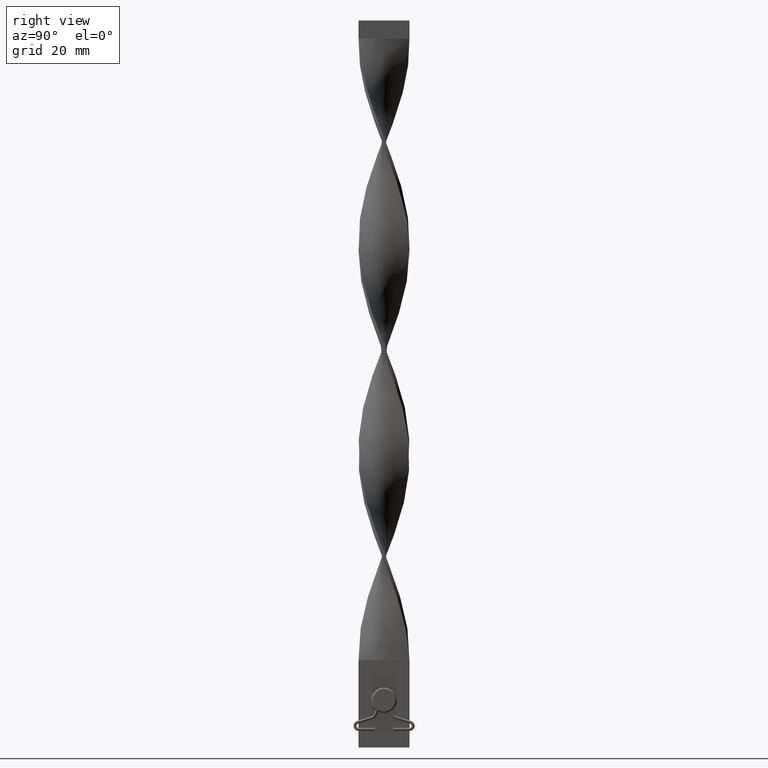
[diagram: clean part render]
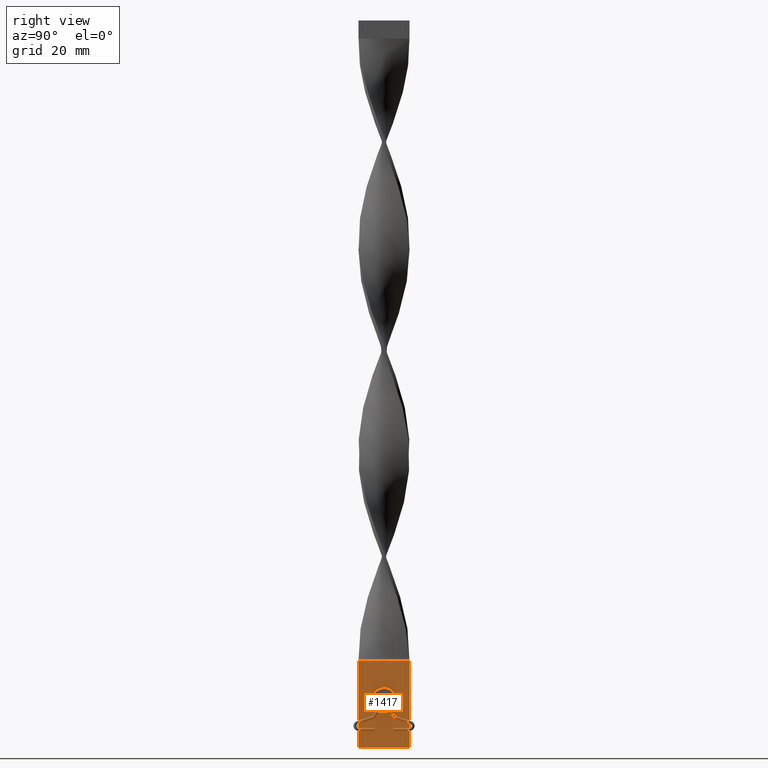
[diagram: same view with one face highlighted and labeled with its STEP entity id]
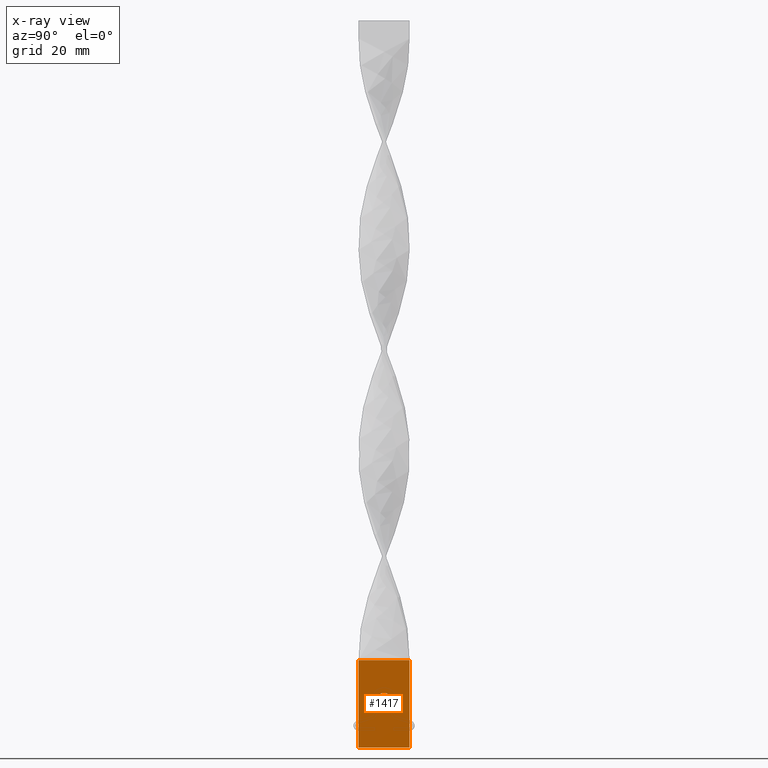
[diagram: x-ray of the same camera — body ghosted, the highlighted face saturated]
A machine part, right view. The second image highlights one B-rep face of the part: STEP entity #1417.
The next image is the same camera in x-ray: the body ghosted, the highlighted face saturated — about 0% of this face is hidden behind the body in this view.
In plain terms, the highlighted planar face has unit normal (1, 0, -0).
Its self-contained STEP definition (entity closure, byte-faithful):
#87 = EDGE_CURVE ( 'NONE', #4072, #1683, #2725, .T. ) ;
#117 = VERTEX_POINT ( 'NONE', #2497 ) ;
#242 = AXIS2_PLACEMENT_3D ( 'NONE', #3124, #1336, #2856 ) ;
#328 = CARTESIAN_POINT ( 'NONE',  ( 0.4999999999999998890, 6.195440985631451620E-17, 13.00000000000000000 ) ) ;
#349 = CARTESIAN_POINT ( 'NONE',  ( 0.4999999999999990563, 7.000000000000000888, 0.000000000000000000 ) ) ;
#610 = CIRCLE ( 'NONE', #1579, 1.999999999999999556 ) ;
#637 = VERTEX_POINT ( 'NONE', #759 ) ;
#647 = EDGE_LOOP ( 'NONE', ( #2268, #1450, #4251, #1177 ) ) ;
#739 = CARTESIAN_POINT ( 'NONE',  ( 0.4999999999999990563, 7.000000000000000888, 24.00000000000000000 ) ) ;
#750 = DIRECTION ( 'NONE',  ( -3.794707603699266505E-16, 1.000000000000000000, 0.000000000000000000 ) ) ;
#759 = CARTESIAN_POINT ( 'NONE',  ( 0.5000000000000006661, -1.999999999999999556, 13.00000000000000000 ) ) ;
#782 = DIRECTION ( 'NONE',  ( -0.000000000000000000, -0.000000000000000000, -1.000000000000000000 ) ) ;
#902 = DIRECTION ( 'NONE',  ( 1.000000000000000000, 3.794707603699264533E-16, 0.000000000000000000 ) ) ;
#984 = VECTOR ( 'NONE', #1771, 1000.000000000000000 ) ;
#1020 = DIRECTION ( 'NONE',  ( 1.000000000000000000, 3.794707603699264533E-16, 0.000000000000000000 ) ) ;
#1047 = EDGE_LOOP ( 'NONE', ( #1137, #3760 ) ) ;
#1137 = ORIENTED_EDGE ( 'NONE', *, *, #3084, .F. ) ;
#1177 = ORIENTED_EDGE ( 'NONE', *, *, #4402, .T. ) ;
#1250 = CIRCLE ( 'NONE', #3864, 1.999999999999999556 ) ;
#1336 = DIRECTION ( 'NONE',  ( 1.000000000000000000, 1.239088197126290817E-16, -0.000000000000000000 ) ) ;
#1376 = VERTEX_POINT ( 'NONE', #4213 ) ;
#1409 = FACE_OUTER_BOUND ( 'NONE', #647, .T. ) ;
#1417 = ADVANCED_FACE ( 'NONE', ( #4599, #1409 ), #1722, .T. ) ;
#1450 = ORIENTED_EDGE ( 'NONE', *, *, #3590, .F. ) ;
#1521 = VECTOR ( 'NONE', #4175, 1000.000000000000000 ) ;
#1579 = AXIS2_PLACEMENT_3D ( 'NONE', #4095, #902, #2321 ) ;
#1602 = VERTEX_POINT ( 'NONE', #1667 ) ;
#1667 = CARTESIAN_POINT ( 'NONE',  ( 0.5000000000000007772, -6.999999999999999112, 0.000000000000000000 ) ) ;
#1683 = VERTEX_POINT ( 'NONE', #2979 ) ;
#1722 = PLANE ( 'NONE',  #242 ) ;
#1771 = DIRECTION ( 'NONE',  ( -0.000000000000000000, -0.000000000000000000, -1.000000000000000000 ) ) ;
#1961 = EDGE_CURVE ( 'NONE', #117, #1602, #3883, .T. ) ;
#2094 = CARTESIAN_POINT ( 'NONE',  ( 0.5000000000000007772, -6.999999999999999112, 24.00000000000000000 ) ) ;
#2181 = CARTESIAN_POINT ( 'NONE',  ( 0.4999999999999990563, 7.000000000000000888, 24.00000000000000000 ) ) ;
#2268 = ORIENTED_EDGE ( 'NONE', *, *, #1961, .F. ) ;
#2321 = DIRECTION ( 'NONE',  ( -3.794707603699266505E-16, 1.000000000000000000, 0.000000000000000000 ) ) ;
#2497 = CARTESIAN_POINT ( 'NONE',  ( 0.4999999999999990563, 7.000000000000000888, 0.000000000000000000 ) ) ;
#2725 = LINE ( 'NONE', #3800, #1521 ) ;
#2829 = LINE ( 'NONE', #2181, #3727 ) ;
#2856 = DIRECTION ( 'NONE',  ( -1.239088197126290817E-16, 1.000000000000000000, 0.000000000000000000 ) ) ;
#2979 = CARTESIAN_POINT ( 'NONE',  ( 0.5000000000000007772, -6.999999999999999112, 24.00000000000000000 ) ) ;
#3084 = EDGE_CURVE ( 'NONE', #637, #1376, #1250, .T. ) ;
#3124 = CARTESIAN_POINT ( 'NONE',  ( 0.4999999999999990563, 7.000000000000000888, 24.00000000000000000 ) ) ;
#3159 = DIRECTION ( 'NONE',  ( 1.239088197126290817E-16, -1.000000000000000000, 0.000000000000000000 ) ) ;
#3553 = EDGE_CURVE ( 'NONE', #1376, #637, #610, .T. ) ;
#3590 = EDGE_CURVE ( 'NONE', #4072, #117, #2829, .T. ) ;
#3727 = VECTOR ( 'NONE', #782, 1000.000000000000000 ) ;
#3760 = ORIENTED_EDGE ( 'NONE', *, *, #3553, .F. ) ;
#3800 = CARTESIAN_POINT ( 'NONE',  ( 0.4999999999999990563, 7.000000000000000888, 24.00000000000000000 ) ) ;
#3857 = LINE ( 'NONE', #2094, #984 ) ;
#3864 = AXIS2_PLACEMENT_3D ( 'NONE', #328, #1020, #750 ) ;
#3883 = LINE ( 'NONE', #349, #4562 ) ;
#4072 = VERTEX_POINT ( 'NONE', #739 ) ;
#4095 = CARTESIAN_POINT ( 'NONE',  ( 0.4999999999999998890, 6.195440985631451620E-17, 13.00000000000000000 ) ) ;
#4175 = DIRECTION ( 'NONE',  ( 1.239088197126290817E-16, -1.000000000000000000, 0.000000000000000000 ) ) ;
#4213 = CARTESIAN_POINT ( 'NONE',  ( 0.4999999999999991673, 1.999999999999999556, 13.00000000000000000 ) ) ;
#4251 = ORIENTED_EDGE ( 'NONE', *, *, #87, .T. ) ;
#4402 = EDGE_CURVE ( 'NONE', #1683, #1602, #3857, .T. ) ;
#4562 = VECTOR ( 'NONE', #3159, 1000.000000000000000 ) ;
#4599 = FACE_BOUND ( 'NONE', #1047, .T. ) ;